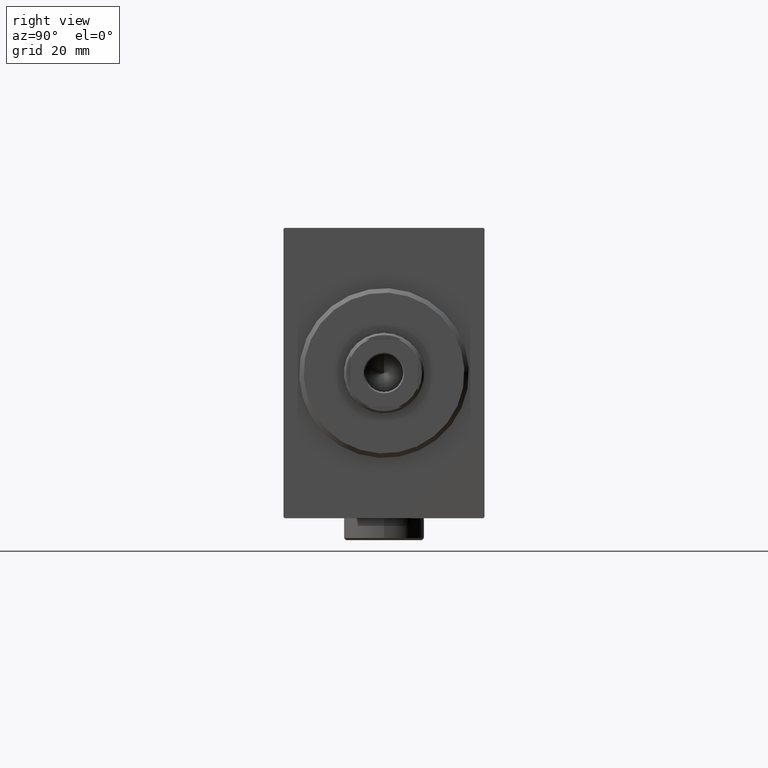
[diagram: clean part render]
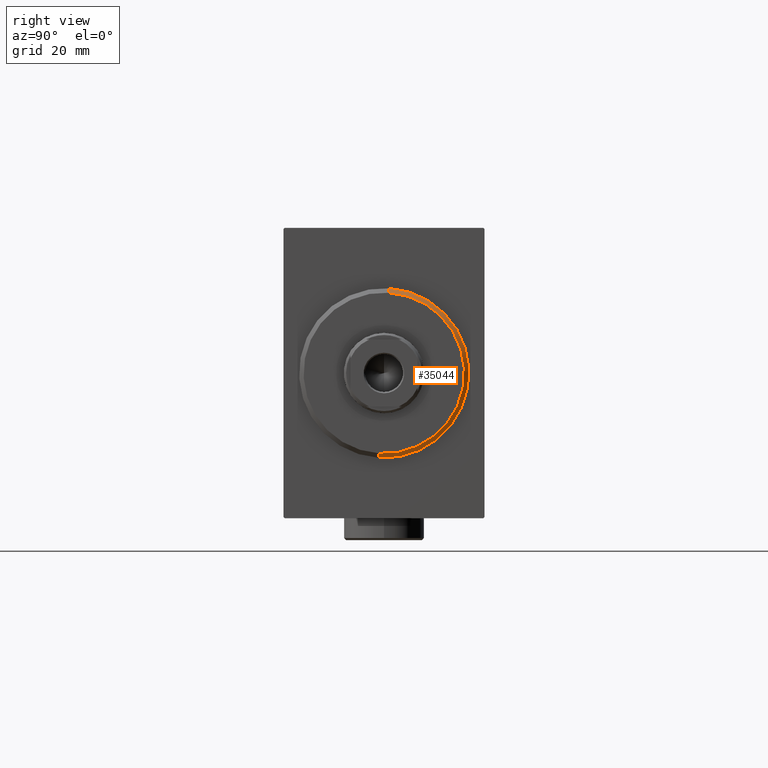
[diagram: same view with one face highlighted and labeled with its STEP entity id]
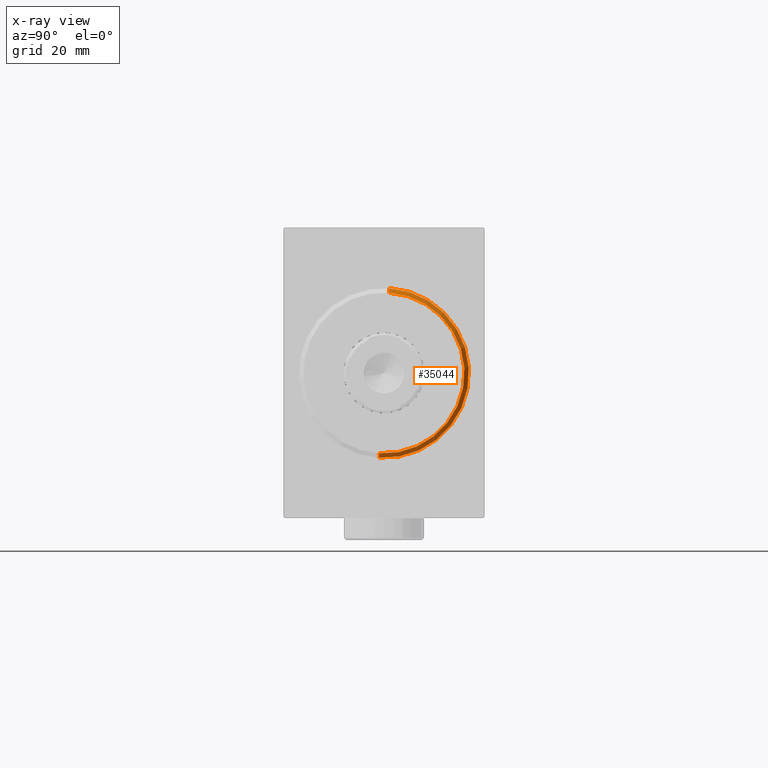
[diagram: x-ray of the same camera — body ghosted, the highlighted face saturated]
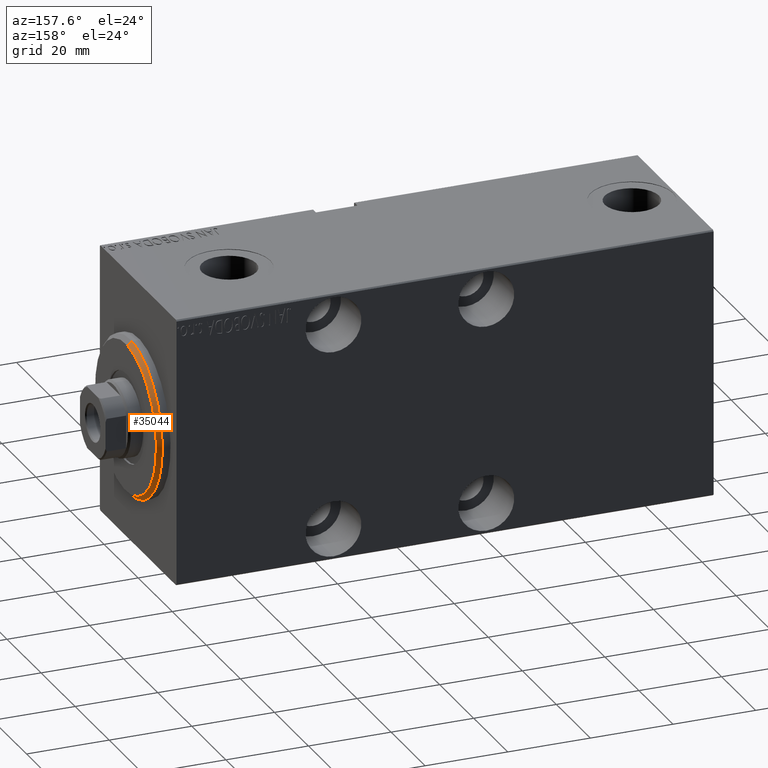
[diagram: same view with one face highlighted and labeled with its STEP entity id]
A machine part, right view. The second image highlights one B-rep face of the part: STEP entity #35044.
The next image is the same camera in x-ray: the body ghosted, the highlighted face saturated — about 0% of this face is hidden behind the body in this view.
A second angle (auxiliary view) of the same face is appended — the face is thin or edge-on in the first view.
In plain terms, the highlighted conical surface has half-angle 45 deg.
Its self-contained STEP definition (entity closure, byte-faithful):
#1499 = ORIENTED_EDGE ( 'NONE', *, *, #37196, .F. ) ;
#1861 = CARTESIAN_POINT ( 'NONE',  ( 3.000000000000000000, 2.265596578422603002E-15, -17.99999999999999645 ) ) ;
#3935 = DIRECTION ( 'NONE',  ( 1.000000000000000000, -0.000000000000000000, 0.000000000000000000 ) ) ;
#4074 = CARTESIAN_POINT ( 'NONE',  ( 3.000000000000000000, 2.204364238465235033E-15, -17.99999999999999645 ) ) ;
#4107 = ORIENTED_EDGE ( 'NONE', *, *, #34301, .T. ) ;
#4362 = CARTESIAN_POINT ( 'NONE',  ( 3.000000000000000000, 0.000000000000000000, 17.99999999999999645 ) ) ;
#4680 = DIRECTION ( 'NONE',  ( -1.000000000000000000, 0.000000000000000000, 0.000000000000000000 ) ) ;
#9647 = DIRECTION ( 'NONE',  ( -1.000000000000000000, 0.000000000000000000, 0.000000000000000000 ) ) ;
#10817 = CARTESIAN_POINT ( 'NONE',  ( 3.000000000000000000, 0.000000000000000000, 0.000000000000000000 ) ) ;
#11470 = DIRECTION ( 'NONE',  ( 0.000000000000000000, 0.000000000000000000, -1.000000000000000000 ) ) ;
#11838 = CARTESIAN_POINT ( 'NONE',  ( 1.999999999999992228, 2.326828918379970970E-15, -19.00000000000000000 ) ) ;
#14944 = LINE ( 'NONE', #4074, #15566 ) ;
#15566 = VECTOR ( 'NONE', #42282, 1000.000000000000000 ) ;
#15877 = DIRECTION ( 'NONE',  ( 0.000000000000000000, 0.000000000000000000, 1.000000000000000000 ) ) ;
#17135 = CARTESIAN_POINT ( 'NONE',  ( 1.999999999999992228, 0.000000000000000000, 19.00000000000000000 ) ) ;
#17898 = DIRECTION ( 'NONE',  ( -0.7071067811865487940, 0.000000000000000000, 0.7071067811865463515 ) ) ;
#18363 = AXIS2_PLACEMENT_3D ( 'NONE', #10817, #3935, #11470 ) ;
#20507 = VERTEX_POINT ( 'NONE', #11838 ) ;
#21164 = ORIENTED_EDGE ( 'NONE', *, *, #22015, .F. ) ;
#21240 = LINE ( 'NONE', #4362, #39697 ) ;
#22015 = EDGE_CURVE ( 'NONE', #36264, #20507, #27323, .T. ) ;
#24669 = DIRECTION ( 'NONE',  ( 0.000000000000000000, 0.000000000000000000, -1.000000000000000000 ) ) ;
#27323 = CIRCLE ( 'NONE', #39422, 19.00000000000000000 ) ;
#27884 = VERTEX_POINT ( 'NONE', #31179 ) ;
#30077 = CARTESIAN_POINT ( 'NONE',  ( 3.000000000000000000, 0.000000000000000000, 0.000000000000000000 ) ) ;
#31179 = CARTESIAN_POINT ( 'NONE',  ( 3.000000000000000000, 0.000000000000000000, 17.99999999999999645 ) ) ;
#31784 = CARTESIAN_POINT ( 'NONE',  ( 1.999999999999992228, 0.000000000000000000, 0.000000000000000000 ) ) ;
#31933 = ORIENTED_EDGE ( 'NONE', *, *, #37936, .F. ) ;
#34301 = EDGE_CURVE ( 'NONE', #37559, #20507, #14944, .T. ) ;
#34756 = CONICAL_SURFACE ( 'NONE', #39037, 17.99999999999999645, 0.7853981633974466137 ) ;
#35044 = ADVANCED_FACE ( 'NONE', ( #42781 ), #34756, .T. ) ;
#35548 = EDGE_LOOP ( 'NONE', ( #31933, #4107, #21164, #1499 ) ) ;
#36264 = VERTEX_POINT ( 'NONE', #17135 ) ;
#37196 = EDGE_CURVE ( 'NONE', #27884, #36264, #21240, .T. ) ;
#37559 = VERTEX_POINT ( 'NONE', #1861 ) ;
#37936 = EDGE_CURVE ( 'NONE', #37559, #27884, #41101, .T. ) ;
#39037 = AXIS2_PLACEMENT_3D ( 'NONE', #30077, #9647, #15877 ) ;
#39422 = AXIS2_PLACEMENT_3D ( 'NONE', #31784, #4680, #24669 ) ;
#39697 = VECTOR ( 'NONE', #17898, 1000.000000000000000 ) ;
#41101 = CIRCLE ( 'NONE', #18363, 17.99999999999999645 ) ;
#42282 = DIRECTION ( 'NONE',  ( -0.7071067811865487940, 8.659560562354918067E-17, -0.7071067811865463515 ) ) ;
#42781 = FACE_OUTER_BOUND ( 'NONE', #35548, .T. ) ;